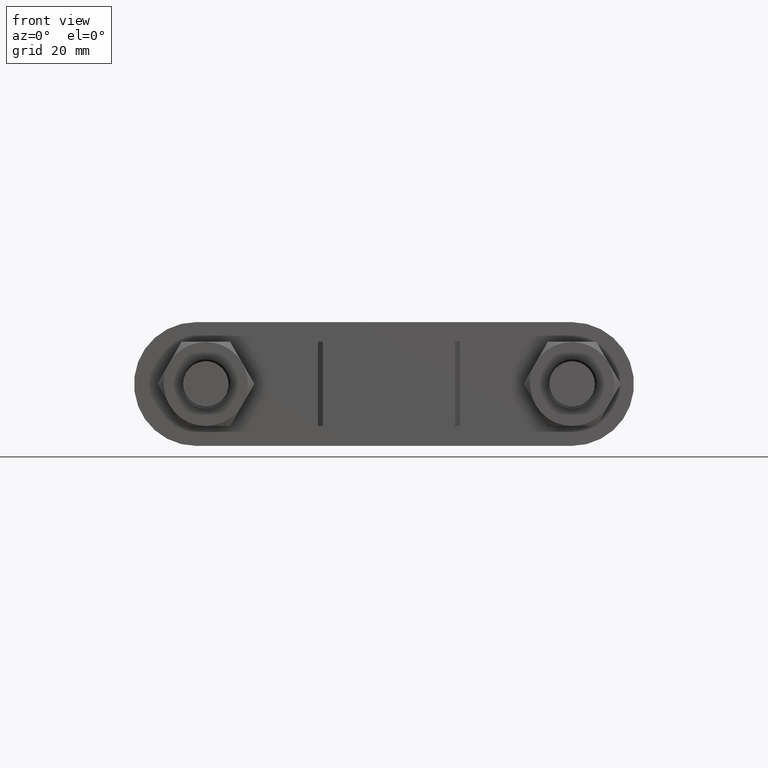
[diagram: clean part render]
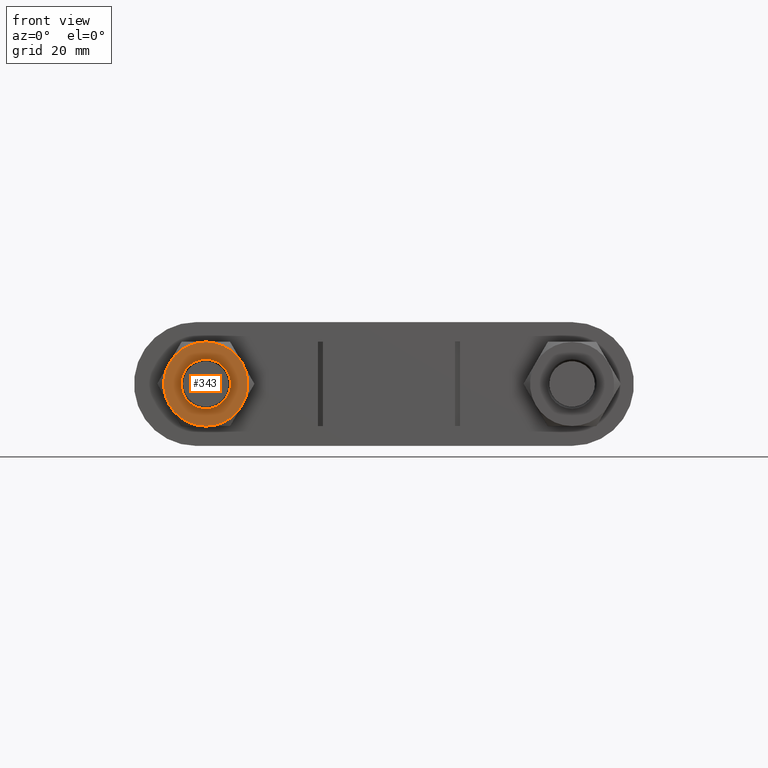
[diagram: same view with one face highlighted and labeled with its STEP entity id]
A machine part, front view. The second image highlights one B-rep face of the part: STEP entity #343.
In plain terms, the highlighted planar face has unit normal (-0, 1, -0).
Its self-contained STEP definition (entity closure, byte-faithful):
#343 = ADVANCED_FACE( '', ( #554, #555 ), #556, .F. );
#554 = FACE_OUTER_BOUND( '', #1632, .T. );
#555 = FACE_BOUND( '', #1633, .T. );
#556 = PLANE( '', #1634 );
#1632 = EDGE_LOOP( '', ( #2257, #2258, #2259, #2260, #2261, #2262 ) );
#1633 = EDGE_LOOP( '', ( #2263 ) );
#1634 = AXIS2_PLACEMENT_3D( '', #2264, #2265, #2266 );
#2257 = ORIENTED_EDGE( '', *, *, #2682, .F. );
#2258 = ORIENTED_EDGE( '', *, *, #2688, .F. );
#2259 = ORIENTED_EDGE( '', *, *, #2663, .F. );
#2260 = ORIENTED_EDGE( '', *, *, #2679, .F. );
#2261 = ORIENTED_EDGE( '', *, *, #2649, .F. );
#2262 = ORIENTED_EDGE( '', *, *, #2651, .F. );
#2263 = ORIENTED_EDGE( '', *, *, #2689, .T. );
#2264 = CARTESIAN_POINT( '', ( -37.0000000000000, 17.0000000000003, -1.07765359136371E-015 ) );
#2265 = DIRECTION( '', ( -1.49966072182214E-032, 1.00000000000000, -6.12303176911188E-017 ) );
#2266 = DIRECTION( '', ( 1.00000000000000, 0.000000000000000, -2.44921270764476E-016 ) );
#2649 = EDGE_CURVE( '', #2970, #2972, #2973, .T. );
#2651 = EDGE_CURVE( '', #2975, #2970, #2976, .T. );
#2663 = EDGE_CURVE( '', #2990, #2997, #2998, .T. );
#2679 = EDGE_CURVE( '', #2972, #2990, #3025, .T. );
#2682 = EDGE_CURVE( '', #3029, #2975, #3030, .T. );
#2688 = EDGE_CURVE( '', #2997, #3029, #3038, .T. );
#2689 = EDGE_CURVE( '', #3039, #3039, #3040, .T. );
#2970 = VERTEX_POINT( '', #3675 );
#2972 = VERTEX_POINT( '', #3682 );
#2973 = CIRCLE( '', #3683, 8.49999999999946 );
#2975 = VERTEX_POINT( '', #3690 );
#2976 = CIRCLE( '', #3691, 8.49999999999946 );
#2990 = VERTEX_POINT( '', #3717 );
#2997 = VERTEX_POINT( '', #3736 );
#2998 = CIRCLE( '', #3737, 8.49999999999946 );
#3025 = CIRCLE( '', #3776, 8.49999999999946 );
#3029 = VERTEX_POINT( '', #3785 );
#3030 = CIRCLE( '', #3786, 8.49999999999946 );
#3038 = CIRCLE( '', #3806, 8.49999999999946 );
#3039 = VERTEX_POINT( '', #3807 );
#3040 = CIRCLE( '', #3808, 4.99999999999968 );
#3675 = CARTESIAN_POINT( '', ( -36.9999999999999, 17.0000000000003, 8.49999999999946 ) );
#3682 = CARTESIAN_POINT( '', ( -29.6387840678328, 17.0000000000003, 4.24999999999974 ) );
#3683 = AXIS2_PLACEMENT_3D( '', #4175, #4176, #4177 );
#3690 = CARTESIAN_POINT( '', ( -44.3612159321670, 17.0000000000002, 4.24999999999979 ) );
#3691 = AXIS2_PLACEMENT_3D( '', #4178, #4179, #4180 );
#3717 = CARTESIAN_POINT( '', ( -29.6387840678330, 17.0000000000002, -4.24999999999980 ) );
#3736 = CARTESIAN_POINT( '', ( -37.0000000000001, 17.0000000000003, -8.49999999999947 ) );
#3737 = AXIS2_PLACEMENT_3D( '', #4194, #4195, #4196 );
#3776 = AXIS2_PLACEMENT_3D( '', #4225, #4226, #4227 );
#3785 = CARTESIAN_POINT( '', ( -44.3612159321672, 17.0000000000003, -4.24999999999979 ) );
#3786 = AXIS2_PLACEMENT_3D( '', #4231, #4232, #4233 );
#3806 = AXIS2_PLACEMENT_3D( '', #4239, #4240, #4241 );
#3807 = CARTESIAN_POINT( '', ( -37.0000000000000, 17.0000000000003, 4.99999999999968 ) );
#3808 = AXIS2_PLACEMENT_3D( '', #4242, #4243, #4244 );
#4175 = CARTESIAN_POINT( '', ( -37.0000000000000, 17.0000000000003, -1.07765359136371E-015 ) );
#4176 = DIRECTION( '', ( -1.49966072182214E-032, 1.00000000000000, -6.12303176911188E-017 ) );
#4177 = DIRECTION( '', ( 0.000000000000000, 6.12303176911188E-017, 1.00000000000000 ) );
#4178 = CARTESIAN_POINT( '', ( -37.0000000000000, 17.0000000000003, -1.07765359136371E-015 ) );
#4179 = DIRECTION( '', ( -1.49966072182214E-032, 1.00000000000000, -6.12303176911188E-017 ) );
#4180 = DIRECTION( '', ( 0.000000000000000, 6.12303176911188E-017, 1.00000000000000 ) );
#4194 = CARTESIAN_POINT( '', ( -37.0000000000000, 17.0000000000003, -1.07765359136371E-015 ) );
#4195 = DIRECTION( '', ( -1.49966072182214E-032, 1.00000000000000, -6.12303176911188E-017 ) );
#4196 = DIRECTION( '', ( 0.000000000000000, 6.12303176911188E-017, 1.00000000000000 ) );
#4225 = CARTESIAN_POINT( '', ( -37.0000000000000, 17.0000000000003, -1.07765359136371E-015 ) );
#4226 = DIRECTION( '', ( -1.49966072182214E-032, 1.00000000000000, -6.12303176911188E-017 ) );
#4227 = DIRECTION( '', ( 0.000000000000000, 6.12303176911188E-017, 1.00000000000000 ) );
#4231 = CARTESIAN_POINT( '', ( -37.0000000000000, 17.0000000000003, -1.07765359136371E-015 ) );
#4232 = DIRECTION( '', ( -1.49966072182214E-032, 1.00000000000000, -6.12303176911188E-017 ) );
#4233 = DIRECTION( '', ( 0.000000000000000, 6.12303176911188E-017, 1.00000000000000 ) );
#4239 = CARTESIAN_POINT( '', ( -37.0000000000000, 17.0000000000003, -1.07765359136371E-015 ) );
#4240 = DIRECTION( '', ( -1.49966072182214E-032, 1.00000000000000, -6.12303176911188E-017 ) );
#4241 = DIRECTION( '', ( 0.000000000000000, 6.12303176911188E-017, 1.00000000000000 ) );
#4242 = CARTESIAN_POINT( '', ( -37.0000000000000, 17.0000000000003, -1.07765359136371E-015 ) );
#4243 = DIRECTION( '', ( -1.49966072182214E-032, 1.00000000000000, -6.12303176911189E-017 ) );
#4244 = DIRECTION( '', ( 0.000000000000000, 6.12303176911188E-017, 1.00000000000000 ) );